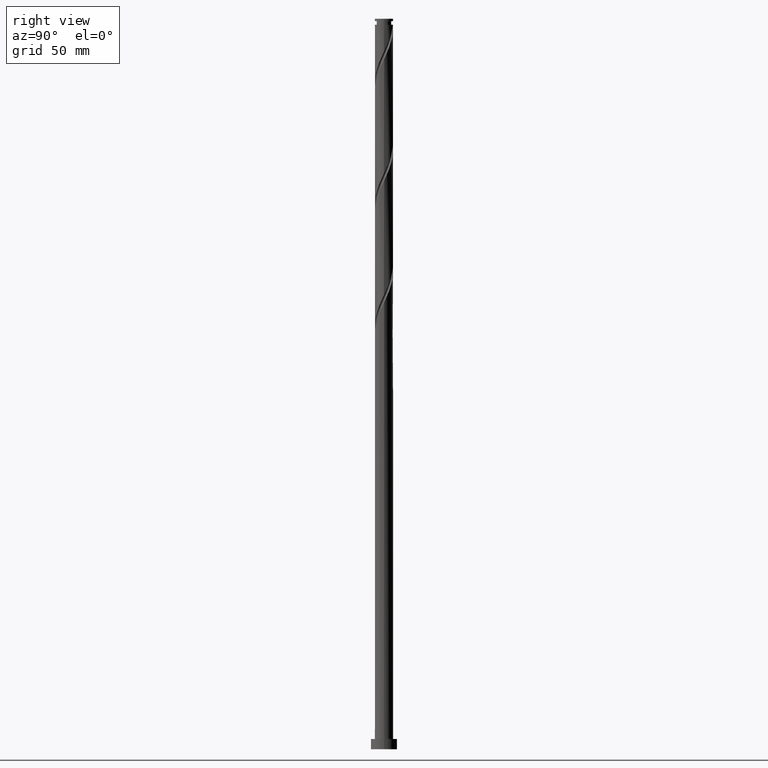
[diagram: clean part render]
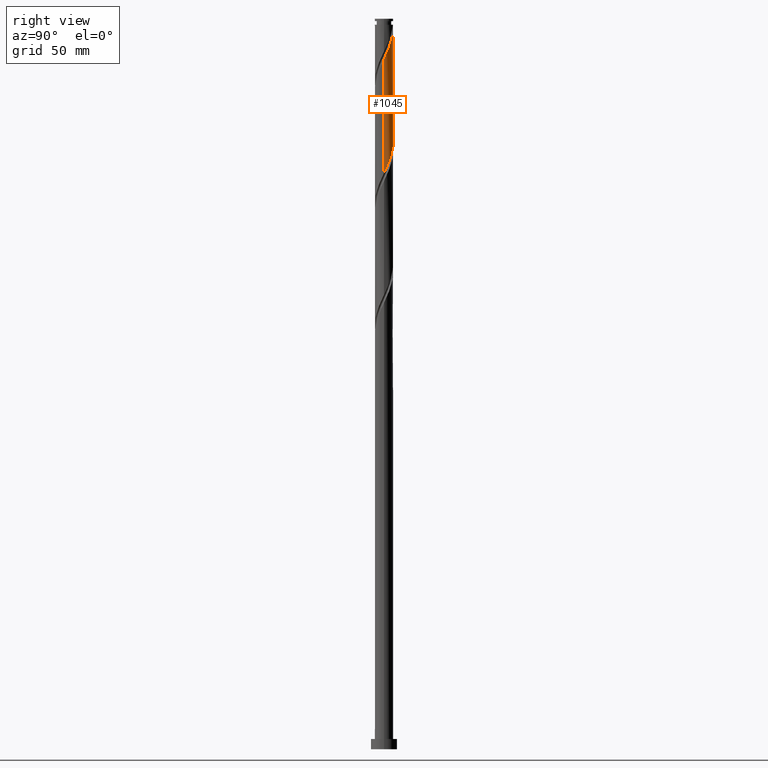
[diagram: same view with one face highlighted and labeled with its STEP entity id]
A machine part, right view. The second image highlights one B-rep face of the part: STEP entity #1045.
In plain terms, the highlighted cylindrical surface (edge-blend (fillet) strip) has radius 6.25 mm, axis along (-0, -0, -1).
Its self-contained STEP definition (entity closure, byte-faithful):
#64 = CARTESIAN_POINT ( 'NONE',  ( -6.002502863745775130, 1.846994141945911272, 432.0679405604971635 ) ) ;
#70 = VERTEX_POINT ( 'NONE', #1840 ) ;
#75 = CARTESIAN_POINT ( 'NONE',  ( 2.982534884002440378, 5.526835772425963356, 408.6304405604971635 ) ) ;
#89 = CARTESIAN_POINT ( 'NONE',  ( -5.182805627141497062, 3.492996683547012982, 428.1616905604970498 ) ) ;
#97 = DIRECTION ( 'NONE',  ( -0.000000000000000000, -0.000000000000000000, -1.000000000000000000 ) ) ;
#153 = CARTESIAN_POINT ( 'NONE',  ( 1.799092411583237405, 6.017033694790354659, 489.3596072271636785 ) ) ;
#181 = VECTOR ( 'NONE', #455, 1000.000000000000000 ) ;
#203 = CARTESIAN_POINT ( 'NONE',  ( 0.000000000000000000, 0.000000000000000000, 500.0000000000000000 ) ) ;
#209 = VERTEX_POINT ( 'NONE', #1205 ) ;
#228 = CARTESIAN_POINT ( 'NONE',  ( -4.838775481857032545, 4.003458483091587361, 426.8596072271636785 ) ) ;
#261 = CARTESIAN_POINT ( 'NONE',  ( 5.550432561628091399, 2.938388396464528540, 400.8179405604971066 ) ) ;
#268 = DIRECTION ( 'NONE',  ( -0.000000000000000000, -0.000000000000000000, -1.000000000000000000 ) ) ;
#284 = CARTESIAN_POINT ( 'NONE',  ( -0.6404744508206311471, 6.247497136254232863, 494.5679405604971066 ) ) ;
#305 = EDGE_CURVE ( 'NONE', #209, #70, #863, .T. ) ;
#310 = CARTESIAN_POINT ( 'NONE',  ( 2.938388396464535646, 5.550432561628096728, 486.7554405604971066 ) ) ;
#321 = LINE ( 'NONE', #1830, #1577 ) ;
#333 =( BOUNDED_CURVE ( )  B_SPLINE_CURVE ( 2, ( #597, #462, #1247, #1257, #631, #2097, #1280, #1114, #473, #1897, #1603, #1766, #1082, #310, #1093, #153, #1455, #1291, #1734, #284, #933 ),
 .UNSPECIFIED., .F., .T. ) 
 B_SPLINE_CURVE_WITH_KNOTS ( ( 3, 2, 2, 2, 2, 2, 2, 2, 2, 2, 3 ),
 ( 0.6795286902180870392, 0.6796875000000000000, 0.6875000000000000000, 0.6953125000000000000, 0.7031249999999998890, 0.7109374999999998890, 0.7187499999999998890, 0.7265624999999998890, 0.7343749999999997780, 0.7421874999999997780, 0.7499999999999997780 ),
 .UNSPECIFIED. ) 
 CURVE ( )  GEOMETRIC_REPRESENTATION_ITEM ( )  RATIONAL_B_SPLINE_CURVE ( ( 0.9089165573359500039, 0.9090019243628548740, 0.9090909090909468082, 0.9047133878838528043, 0.9090909090909468082, 0.9047133878838528043, 0.9090909090909468082, 0.9047133878838528043, 0.9090909090909468082, 0.9047133878838528043, 0.9090909090909468082, 0.9047133878838528043, 0.9090909090909468082, 0.9047133878838528043, 0.9090909090909468082, 0.9047133878838528043, 0.9090909090909468082, 0.9047133878838528043, 0.9090909090909468082, 0.9047133878838529153, 0.9090909090909466972 ) ) 
 REPRESENTATION_ITEM ( '' )  );
#382 = AXIS2_PLACEMENT_3D ( 'NONE', #203, #1003, #647 ) ;
#416 = CARTESIAN_POINT ( 'NONE',  ( 4.870531417840912702, 3.964763763136884833, 403.4221072271638491 ) ) ;
#435 = EDGE_CURVE ( 'NONE', #209, #941, #540, .T. ) ;
#455 = DIRECTION ( 'NONE',  ( -0.000000000000000000, -0.000000000000000000, -1.000000000000000000 ) ) ;
#462 = CARTESIAN_POINT ( 'NONE',  ( 6.250000000000008882, 0.01245408358911469400, 472.4061804703507050 ) ) ;
#469 = CARTESIAN_POINT ( 'NONE',  ( 6.134718646121763541, 1.194875362925338358, 396.9116905604970498 ) ) ;
#473 = CARTESIAN_POINT ( 'NONE',  ( 5.182805627141504168, 3.492996683547017867, 480.2450238938303642 ) ) ;
#499 = CARTESIAN_POINT ( 'NONE',  ( -6.250000000000001776, -5.714502602732998739E-15, 436.0268875384940657 ) ) ;
#540 = LINE ( 'NONE', #2100, #181 ) ;
#553 = CARTESIAN_POINT ( 'NONE',  ( 0.6404744508206482445, 6.247497136254223982, 413.8387738938303642 ) ) ;
#572 = CARTESIAN_POINT ( 'NONE',  ( -2.368740404023879975, 5.783733128209219032, 420.3491905604970498 ) ) ;
#597 = CARTESIAN_POINT ( 'NONE',  ( 6.250000000000007994, -8.294043242714179660E-16, 472.3798269158335756 ) ) ;
#605 = ORIENTED_EDGE ( 'NONE', *, *, #1279, .T. ) ;
#631 = CARTESIAN_POINT ( 'NONE',  ( 6.125000000000008882, 1.243734296383278704, 475.0366905604970498 ) ) ;
#647 = DIRECTION ( 'NONE',  ( -1.000000000000000000, 0.000000000000000000, 0.000000000000000000 ) ) ;
#690 = CARTESIAN_POINT ( 'NONE',  ( 6.250000000000001776, 6.297881374636269097E-15, 394.3602208718273801 ) ) ;
#701 = CARTESIAN_POINT ( 'NONE',  ( -6.250000000000000888, 0.01245408358910110591, 436.0005339839768226 ) ) ;
#727 = CARTESIAN_POINT ( 'NONE',  ( 4.003458483091588249, 4.838775481857031657, 406.0262738938305915 ) ) ;
#737 = ORIENTED_EDGE ( 'NONE', *, *, #305, .T. ) ;
#768 = CARTESIAN_POINT ( 'NONE',  ( 0.000000000000000000, 0.000000000000000000, 495.8700238938303642 ) ) ;
#863 = CIRCLE ( 'NONE', #1026, 6.249999999999952038 ) ;
#878 = CARTESIAN_POINT ( 'NONE',  ( -3.451576079800708019, 5.210481989734499386, 422.9533572271636785 ) ) ;
#899 = CARTESIAN_POINT ( 'NONE',  ( -6.249950366853703088, 0.02490806827660372799, 435.9741905604971635 ) ) ;
#920 = EDGE_LOOP ( 'NONE', ( #1511, #605, #1742, #1938, #737 ) ) ;
#932 = EDGE_CURVE ( 'NONE', #1940, #70, #333, .T. ) ;
#933 = CARTESIAN_POINT ( 'NONE',  ( -1.243734296383278259, 6.125000000000005329, 495.8700238938303642 ) ) ;
#941 = VERTEX_POINT ( 'NONE', #499 ) ;
#1003 = DIRECTION ( 'NONE',  ( -0.000000000000000000, -0.000000000000000000, -1.000000000000000000 ) ) ;
#1026 = AXIS2_PLACEMENT_3D ( 'NONE', #768, #268, #1559 ) ;
#1035 = CARTESIAN_POINT ( 'NONE',  ( -6.125000000000000000, 1.243734296383279592, 433.3700238938304210 ) ) ;
#1045 = ADVANCED_FACE ( 'NONE', ( #1505 ), #1310, .T. ) ;
#1046 = CARTESIAN_POINT ( 'NONE',  ( 2.414764512974177268, 5.764669318085869243, 409.9325238938303642 ) ) ;
#1071 = CARTESIAN_POINT ( 'NONE',  ( 0.02490806827660350942, 6.249950366853703088, 415.1408572271637354 ) ) ;
#1082 = CARTESIAN_POINT ( 'NONE',  ( 3.451576079800713792, 5.210481989734502939, 485.4533572271637354 ) ) ;
#1093 = CARTESIAN_POINT ( 'NONE',  ( 2.368740404023883084, 5.783733128209226138, 488.0575238938303642 ) ) ;
#1114 = CARTESIAN_POINT ( 'NONE',  ( 5.526835772425973126, 2.982534884002440823, 478.9429405604971066 ) ) ;
#1125 = VERTEX_POINT ( 'NONE', #690 ) ;
#1191 = CARTESIAN_POINT ( 'NONE',  ( -6.250000000000001776, -5.714502602732998739E-15, 436.0268875384940657 ) ) ;
#1201 = CARTESIAN_POINT ( 'NONE',  ( 1.846994141945910162, 6.002502863745776018, 411.2346072271638491 ) ) ;
#1205 = CARTESIAN_POINT ( 'NONE',  ( -6.249999999999952038, 0.000000000000000000, 495.8700238938303642 ) ) ;
#1223 = CARTESIAN_POINT ( 'NONE',  ( -1.799092411583232298, 6.017033694790346665, 419.0471072271638491 ) ) ;
#1247 = CARTESIAN_POINT ( 'NONE',  ( 6.249950366853710193, 0.02490806827659989078, 472.4325238938303642 ) ) ;
#1257 = CARTESIAN_POINT ( 'NONE',  ( 6.247497136254232863, 0.6404744508206492437, 473.7346072271636785 ) ) ;
#1267 = CARTESIAN_POINT ( 'NONE',  ( 6.249999999999997335, 0.6029988433061453934, 395.6362009772432771 ) ) ;
#1279 = EDGE_CURVE ( 'NONE', #1940, #1125, #321, .T. ) ;
#1280 = CARTESIAN_POINT ( 'NONE',  ( 5.764669318085877237, 2.414764512974176824, 477.6408572271636217 ) ) ;
#1291 = CARTESIAN_POINT ( 'NONE',  ( 0.5906583142674440845, 6.252403597453189299, 491.9637738938304210 ) ) ;
#1310 = CYLINDRICAL_SURFACE ( 'NONE', #382, 6.250000000000000000 ) ;
#1354 = CARTESIAN_POINT ( 'NONE',  ( -6.247497136254223982, 0.6404744508206479114, 434.6721072271637922 ) ) ;
#1363 = CARTESIAN_POINT ( 'NONE',  ( -1.194875362925336582, 6.134718646121764429, 417.7450238938303642 ) ) ;
#1377 = CARTESIAN_POINT ( 'NONE',  ( 4.436994950466247367, 4.401769622496961354, 404.7241905604970498 ) ) ;
#1386 = CARTESIAN_POINT ( 'NONE',  ( -4.401769622496961354, 4.436994950466248255, 425.5575238938303642 ) ) ;
#1409 = EDGE_CURVE ( 'NONE', #941, #1125, #1450, .T. ) ;
#1439 = CARTESIAN_POINT ( 'NONE',  ( 6.250000000000001776, 6.297881374636269097E-15, 394.3602208718274369 ) ) ;
#1450 =( BOUNDED_CURVE ( )  B_SPLINE_CURVE ( 2, ( #1191, #701, #899, #1354, #1035, #64, #1682, #1552, #89, #228, #1386, #2039, #878, #1527, #572, #1223, #1363, #2016, #1071, #553, #1538, #1201, #1046, #75, #1874, #727, #1377, #416, #1712, #261, #1562, #2065, #469, #1267, #1439 ),
 .UNSPECIFIED., .F., .T. ) 
 B_SPLINE_CURVE_WITH_KNOTS ( ( 3, 2, 2, 2, 2, 2, 2, 2, 2, 2, 2, 2, 2, 2, 2, 2, 2, 3 ),
 ( 0.4295286902180868172, 0.4296875000000000000, 0.4375000000000000000, 0.4453125000000000000, 0.4531250000000000000, 0.4609375000000000000, 0.4687500000000000000, 0.4765625000000000000, 0.4843750000000000000, 0.4921875000000000000, 0.5000000000000000000, 0.5078125000000000000, 0.5156250000000000000, 0.5234375000000000000, 0.5312500000000000000, 0.5390625000000000000, 0.5468750000000000000, 0.5545286902180870392 ),
 .UNSPECIFIED. ) 
 CURVE ( )  GEOMETRIC_REPRESENTATION_ITEM ( )  RATIONAL_B_SPLINE_CURVE ( ( 0.9089165573359438977, 0.9090019243628488788, 0.9090909090909409240, 0.9047133878838470311, 0.9090909090909409240, 0.9047133878838470311, 0.9090909090909409240, 0.9047133878838470311, 0.9090909090909409240, 0.9047133878838470311, 0.9090909090909409240, 0.9047133878838470311, 0.9090909090909409240, 0.9047133878838470311, 0.9090909090909409240, 0.9047133878838470311, 0.9090909090909409240, 0.9047133878838470311, 0.9090909090909409240, 0.9047133878838470311, 0.9090909090909409240, 0.9047133878838470311, 0.9090909090909409240, 0.9047133878838470311, 0.9090909090909409240, 0.9047133878838470311, 0.9090909090909409240, 0.9047133878838470311, 0.9090909090909409240, 0.9047133878838470311, 0.9090909090909409240, 0.9047133878838470311, 0.9090909090909409240, 0.9048023726119389654, 0.9089165573359441197 ) ) 
 REPRESENTATION_ITEM ( '' )  );
#1455 = CARTESIAN_POINT ( 'NONE',  ( 1.194875362925343909, 6.134718646121773311, 490.6616905604969929 ) ) ;
#1505 = FACE_OUTER_BOUND ( 'NONE', #920, .T. ) ;
#1511 = ORIENTED_EDGE ( 'NONE', *, *, #932, .F. ) ;
#1527 = CARTESIAN_POINT ( 'NONE',  ( -2.938388396464528540, 5.550432561628093175, 421.6512738938303642 ) ) ;
#1538 = CARTESIAN_POINT ( 'NONE',  ( 1.243734296383280702, 6.125000000000000000, 412.5366905604971635 ) ) ;
#1552 = CARTESIAN_POINT ( 'NONE',  ( -5.526835772425965132, 2.982534884002439046, 429.4637738938304778 ) ) ;
#1559 = DIRECTION ( 'NONE',  ( -1.000000000000000000, 0.000000000000000000, 0.000000000000000000 ) ) ;
#1562 = CARTESIAN_POINT ( 'NONE',  ( 5.783733128209219920, 2.368740404023877311, 399.5158572271637922 ) ) ;
#1577 = VECTOR ( 'NONE', #97, 1000.000000000000000 ) ;
#1603 = CARTESIAN_POINT ( 'NONE',  ( 4.401769622496969347, 4.436994950466251808, 482.8491905604970498 ) ) ;
#1613 = CARTESIAN_POINT ( 'NONE',  ( 6.250000000000007994, -8.294043242714179660E-16, 472.3798269158335188 ) ) ;
#1682 = CARTESIAN_POINT ( 'NONE',  ( -5.764669318085871019, 2.414764512974175492, 430.7658572271637922 ) ) ;
#1712 = CARTESIAN_POINT ( 'NONE',  ( 5.210481989734500274, 3.451576079800706687, 402.1200238938303642 ) ) ;
#1734 = CARTESIAN_POINT ( 'NONE',  ( -0.02490806827659946751, 6.249950366853710193, 493.2658572271636217 ) ) ;
#1742 = ORIENTED_EDGE ( 'NONE', *, *, #1409, .F. ) ;
#1766 = CARTESIAN_POINT ( 'NONE',  ( 3.964763763136894603, 4.870531417840916255, 484.1512738938305347 ) ) ;
#1830 = CARTESIAN_POINT ( 'NONE',  ( 6.250000000000000000, 7.654042494670957606E-16, 500.0000000000000000 ) ) ;
#1840 = CARTESIAN_POINT ( 'NONE',  ( -1.243734296383278259, 6.125000000000005329, 495.8700238938303073 ) ) ;
#1874 = CARTESIAN_POINT ( 'NONE',  ( 3.492996683547016534, 5.182805627141495286, 407.3283572271637922 ) ) ;
#1897 = CARTESIAN_POINT ( 'NONE',  ( 4.838775481857040539, 4.003458483091592690, 481.5471072271637922 ) ) ;
#1938 = ORIENTED_EDGE ( 'NONE', *, *, #435, .F. ) ;
#1940 = VERTEX_POINT ( 'NONE', #1613 ) ;
#2016 = CARTESIAN_POINT ( 'NONE',  ( -0.5906583142674413089, 6.252403597453181305, 416.4429405604971066 ) ) ;
#2039 = CARTESIAN_POINT ( 'NONE',  ( -3.964763763136888386, 4.870531417840910038, 424.2554405604970498 ) ) ;
#2065 = CARTESIAN_POINT ( 'NONE',  ( 6.017033694790346665, 1.799092411583232076, 398.2137738938303642 ) ) ;
#2097 = CARTESIAN_POINT ( 'NONE',  ( 6.002502863745784900, 1.846994141945908829, 476.3387738938303642 ) ) ;
#2100 = CARTESIAN_POINT ( 'NONE',  ( -6.250000000000000000, 0.000000000000000000, 500.0000000000000000 ) ) ;